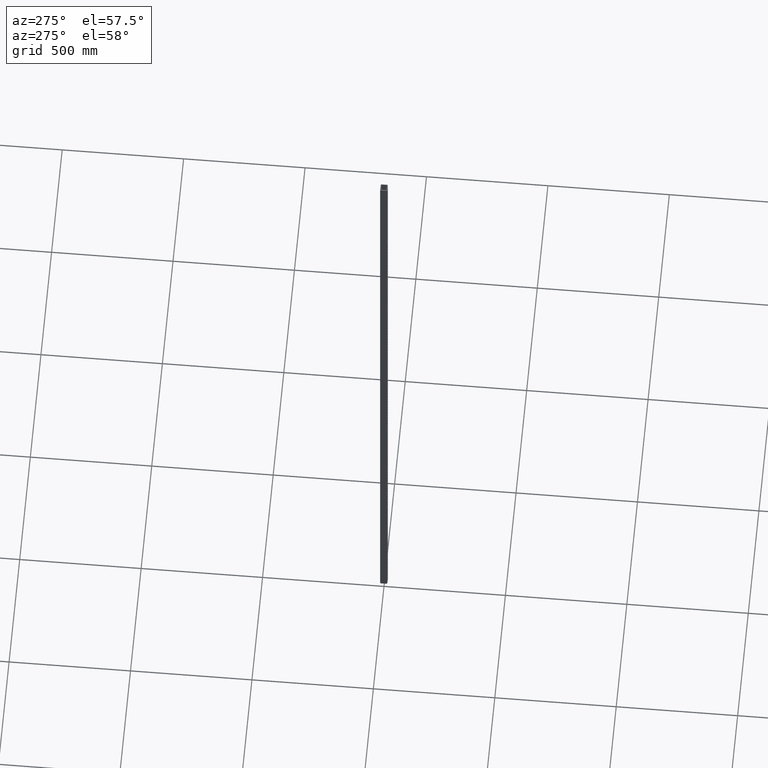
[diagram: clean part render]
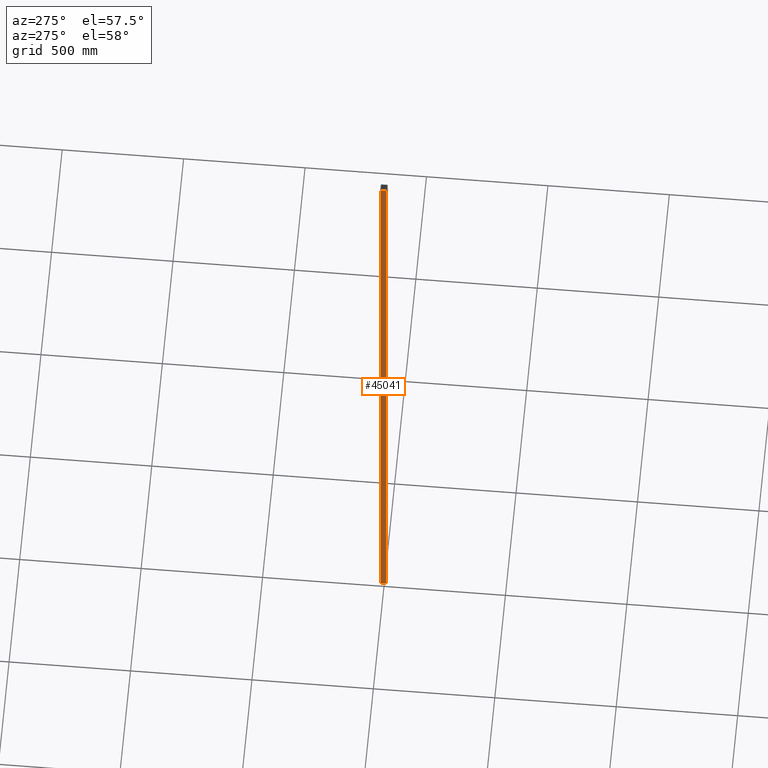
[diagram: same view with one face highlighted and labeled with its STEP entity id]
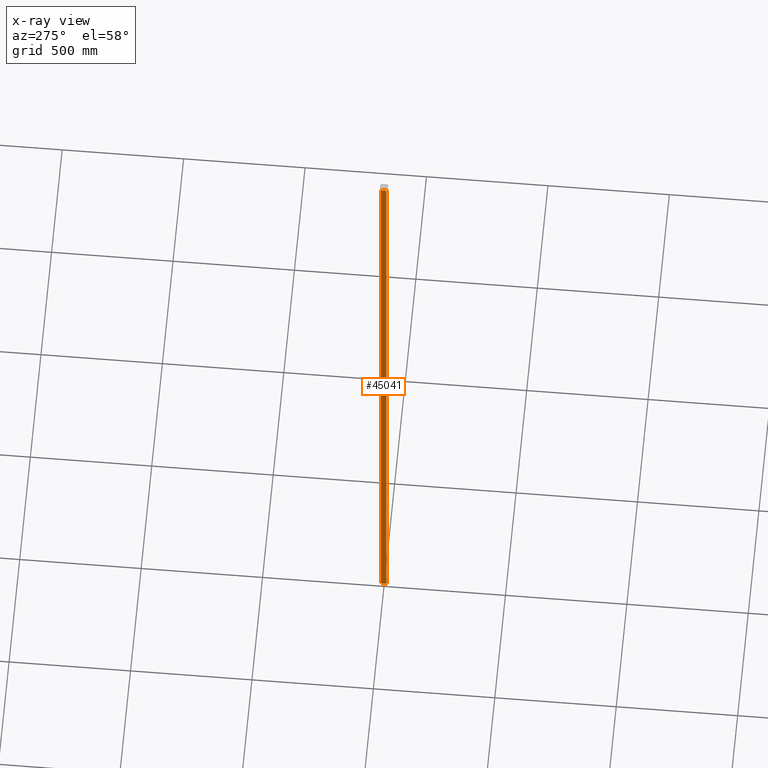
[diagram: x-ray of the same camera — body ghosted, the highlighted face saturated]
A machine part, auxiliary view. The second image highlights one B-rep face of the part: STEP entity #45041.
The next image is the same camera in x-ray: the body ghosted, the highlighted face saturated — about 0% of this face is hidden behind the body in this view.
In plain terms, the highlighted planar face has unit normal (-1, -0, 0).
Its self-contained STEP definition (entity closure, byte-faithful):
#6055 = VECTOR ( 'NONE', #65593, 1000.000000000000000 ) ;
#10067 = VECTOR ( 'NONE', #51647, 1000.000000000000000 ) ;
#10961 = VECTOR ( 'NONE', #15527, 1000.000000000000000 ) ;
#15527 = DIRECTION ( 'NONE',  ( 1.156482317317871478E-16, -1.000000000000000000, 0.000000000000000000 ) ) ;
#16804 = VERTEX_POINT ( 'NONE', #20957 ) ;
#20957 = CARTESIAN_POINT ( 'NONE',  ( -14.99999999999999645, -11.24999999999999645, -3000.000000000000000 ) ) ;
#21277 = DIRECTION ( 'NONE',  ( -1.000000000000000000, -1.156482317317871232E-16, 0.000000000000000000 ) ) ;
#28402 = CARTESIAN_POINT ( 'NONE',  ( -15.00000000000000000, 15.00000000000000000, -3000.000000000000000 ) ) ;
#30514 = EDGE_CURVE ( 'NONE', #16804, #128447, #76706, .T. ) ;
#37207 = ORIENTED_EDGE ( 'NONE', *, *, #62930, .F. ) ;
#39857 = ORIENTED_EDGE ( 'NONE', *, *, #30514, .T. ) ;
#40339 = AXIS2_PLACEMENT_3D ( 'NONE', #59841, #21277, #120560 ) ;
#40797 = CARTESIAN_POINT ( 'NONE',  ( -15.00000000000000000, 11.25000000000000000, -3000.000000000000000 ) ) ;
#41776 = LINE ( 'NONE', #125005, #6055 ) ;
#45041 = ADVANCED_FACE ( 'NONE', ( #96038 ), #109262, .T. ) ;
#46350 = EDGE_CURVE ( 'NONE', #119006, #91593, #41776, .T. ) ;
#51647 = DIRECTION ( 'NONE',  ( 0.000000000000000000, 0.000000000000000000, 1.000000000000000000 ) ) ;
#55835 = CARTESIAN_POINT ( 'NONE',  ( -15.00000000000000000, 15.00000000000000000, 0.000000000000000000 ) ) ;
#56908 = CARTESIAN_POINT ( 'NONE',  ( -14.99999999999999645, -11.24999999999999645, 0.000000000000000000 ) ) ;
#58683 = DIRECTION ( 'NONE',  ( 1.156482317317871478E-16, -1.000000000000000000, 0.000000000000000000 ) ) ;
#59841 = CARTESIAN_POINT ( 'NONE',  ( -15.00000000000000000, 15.00000000000000000, -3000.000000000000000 ) ) ;
#62930 = EDGE_CURVE ( 'NONE', #119006, #128447, #99332, .T. ) ;
#63277 = ORIENTED_EDGE ( 'NONE', *, *, #111376, .T. ) ;
#65593 = DIRECTION ( 'NONE',  ( -0.000000000000000000, -0.000000000000000000, -1.000000000000000000 ) ) ;
#72403 = CARTESIAN_POINT ( 'NONE',  ( -14.99999999999999645, -11.24999999999999645, -3000.000000000000000 ) ) ;
#76706 = LINE ( 'NONE', #72403, #10067 ) ;
#86977 = CARTESIAN_POINT ( 'NONE',  ( -15.00000000000000000, 11.25000000000000000, 0.000000000000000000 ) ) ;
#90577 = ORIENTED_EDGE ( 'NONE', *, *, #46350, .T. ) ;
#91593 = VERTEX_POINT ( 'NONE', #40797 ) ;
#95564 = VECTOR ( 'NONE', #58683, 1000.000000000000000 ) ;
#96038 = FACE_OUTER_BOUND ( 'NONE', #113997, .T. ) ;
#99332 = LINE ( 'NONE', #55835, #10961 ) ;
#109262 = PLANE ( 'NONE',  #40339 ) ;
#111376 = EDGE_CURVE ( 'NONE', #91593, #16804, #118906, .T. ) ;
#113997 = EDGE_LOOP ( 'NONE', ( #37207, #90577, #63277, #39857 ) ) ;
#118906 = LINE ( 'NONE', #28402, #95564 ) ;
#119006 = VERTEX_POINT ( 'NONE', #86977 ) ;
#120560 = DIRECTION ( 'NONE',  ( 1.156482317317871232E-16, -1.000000000000000000, 0.000000000000000000 ) ) ;
#125005 = CARTESIAN_POINT ( 'NONE',  ( -15.00000000000000000, 11.25000000000000000, -3000.000000000000000 ) ) ;
#128447 = VERTEX_POINT ( 'NONE', #56908 ) ;